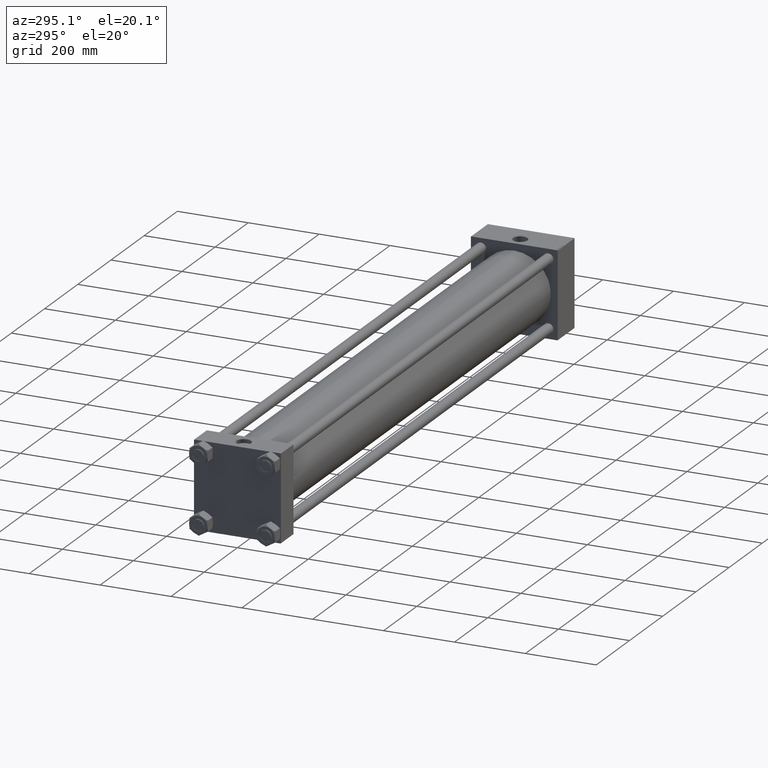
[diagram: clean part render]
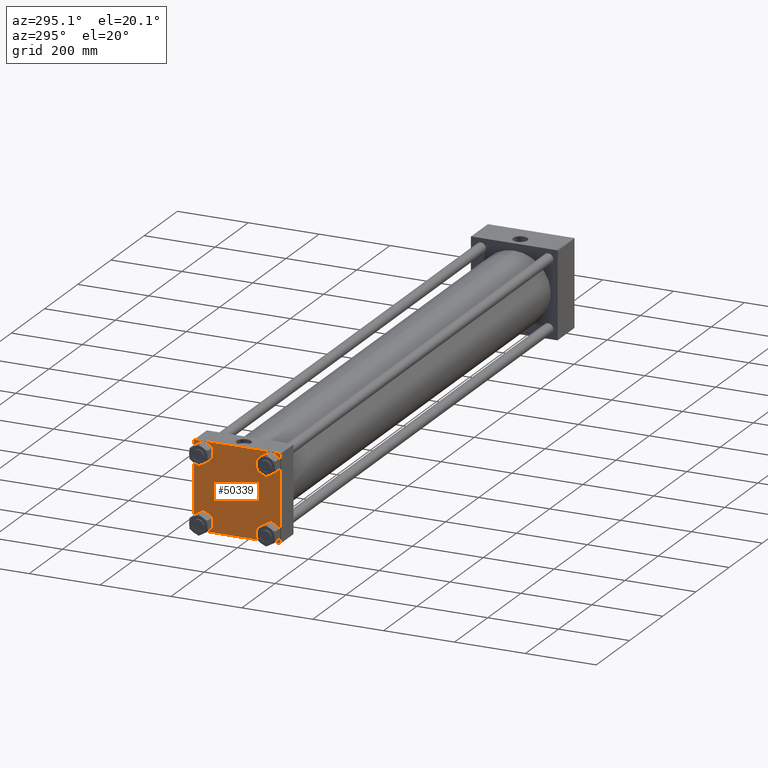
[diagram: same view with one face highlighted and labeled with its STEP entity id]
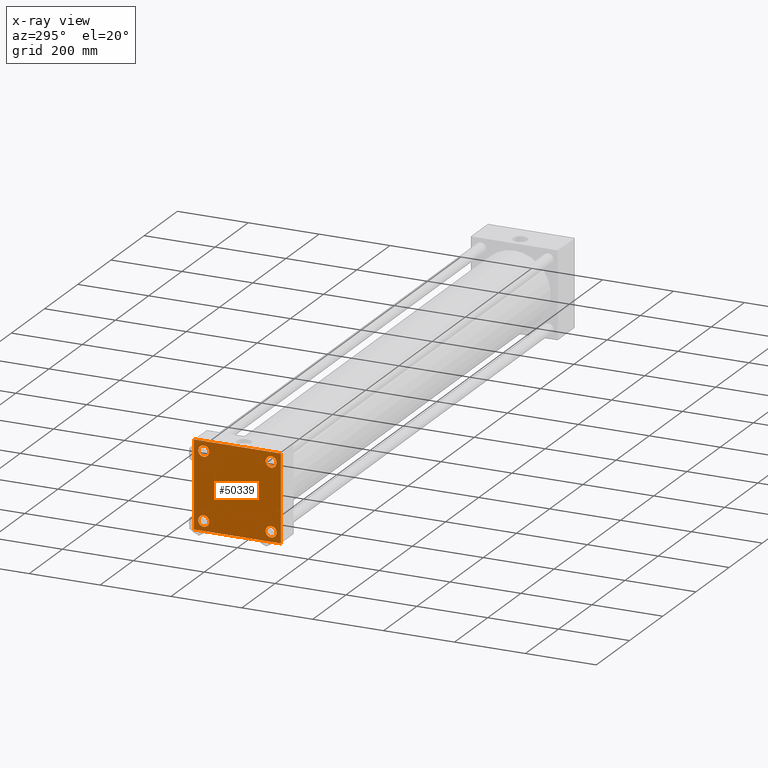
[diagram: x-ray of the same camera — body ghosted, the highlighted face saturated]
A machine part, auxiliary view. The second image highlights one B-rep face of the part: STEP entity #50339.
The next image is the same camera in x-ray: the body ghosted, the highlighted face saturated — about 0% of this face is hidden behind the body in this view.
In plain terms, the highlighted planar face has unit normal (-1, 0, 0).
Its self-contained STEP definition (entity closure, byte-faithful):
#1014 = EDGE_CURVE ( 'NONE', #15321, #15015, #48684, .T. ) ;
#1027 = VERTEX_POINT ( 'NONE', #6965 ) ;
#1259 = EDGE_CURVE ( 'NONE', #8571, #20245, #26407, .T. ) ;
#1309 = DIRECTION ( 'NONE',  ( 0.000000000000000000, 0.000000000000000000, 1.000000000000000000 ) ) ;
#1517 = VERTEX_POINT ( 'NONE', #44569 ) ;
#2001 = VECTOR ( 'NONE', #22803, 1000.000000000000114 ) ;
#2686 = DIRECTION ( 'NONE',  ( 0.000000000000000000, -1.000000000000000000, -1.132880637372608740E-16 ) ) ;
#2701 = ORIENTED_EDGE ( 'NONE', *, *, #32689, .T. ) ;
#2736 = EDGE_CURVE ( 'NONE', #1027, #14765, #22692, .T. ) ;
#2826 = FACE_BOUND ( 'NONE', #42730, .T. ) ;
#3235 = EDGE_CURVE ( 'NONE', #3657, #1517, #25833, .T. ) ;
#3438 = LINE ( 'NONE', #38604, #21310 ) ;
#3657 = VERTEX_POINT ( 'NONE', #10583 ) ;
#4120 = DIRECTION ( 'NONE',  ( 1.000000000000000000, -0.000000000000000000, -0.000000000000000000 ) ) ;
#4212 = ORIENTED_EDGE ( 'NONE', *, *, #17171, .T. ) ;
#4309 = AXIS2_PLACEMENT_3D ( 'NONE', #40851, #5700, #24927 ) ;
#4588 = EDGE_CURVE ( 'NONE', #35973, #5189, #19294, .T. ) ;
#5189 = VERTEX_POINT ( 'NONE', #28053 ) ;
#5700 = DIRECTION ( 'NONE',  ( 1.000000000000000000, -0.000000000000000000, -0.000000000000000000 ) ) ;
#5999 = ORIENTED_EDGE ( 'NONE', *, *, #41570, .T. ) ;
#6428 = FACE_BOUND ( 'NONE', #15592, .T. ) ;
#6965 = CARTESIAN_POINT ( 'NONE',  ( 0.000000000000000000, 122.5000000000000568, 122.0000000000000853 ) ) ;
#6974 = AXIS2_PLACEMENT_3D ( 'NONE', #32346, #25406, #1309 ) ;
#7679 = ORIENTED_EDGE ( 'NONE', *, *, #1014, .T. ) ;
#7736 = ORIENTED_EDGE ( 'NONE', *, *, #10115, .T. ) ;
#8117 = CARTESIAN_POINT ( 'NONE',  ( 0.000000000000000000, 95.09999999999999432, -79.60000000000000853 ) ) ;
#8434 = ORIENTED_EDGE ( 'NONE', *, *, #4588, .T. ) ;
#8562 = CARTESIAN_POINT ( 'NONE',  ( 0.000000000000000000, -122.5000000000000000, -122.0000000000000568 ) ) ;
#8571 = VERTEX_POINT ( 'NONE', #38335 ) ;
#8808 = ORIENTED_EDGE ( 'NONE', *, *, #23263, .T. ) ;
#9627 = CARTESIAN_POINT ( 'NONE',  ( 0.000000000000000000, -95.09999999999996589, -95.10000000000005116 ) ) ;
#9823 = AXIS2_PLACEMENT_3D ( 'NONE', #49769, #11022, #14631 ) ;
#10041 = LINE ( 'NONE', #13120, #42972 ) ;
#10115 = EDGE_CURVE ( 'NONE', #27361, #8571, #16803, .T. ) ;
#10322 = AXIS2_PLACEMENT_3D ( 'NONE', #13099, #21816, #32864 ) ;
#10583 = CARTESIAN_POINT ( 'NONE',  ( 0.000000000000000000, -95.09999999999996589, 110.6000000000000654 ) ) ;
#10752 = ORIENTED_EDGE ( 'NONE', *, *, #46526, .T. ) ;
#10940 = CARTESIAN_POINT ( 'NONE',  ( 0.000000000000000000, 122.0000000000000568, 122.5000000000000284 ) ) ;
#11022 = DIRECTION ( 'NONE',  ( -1.000000000000000000, 0.000000000000000000, 0.000000000000000000 ) ) ;
#11666 = EDGE_LOOP ( 'NONE', ( #34526, #8808, #7736, #34912, #49204, #21426, #43212, #2701 ) ) ;
#13099 = CARTESIAN_POINT ( 'NONE',  ( 0.000000000000000000, 95.09999999999999432, -95.10000000000002274 ) ) ;
#13120 = CARTESIAN_POINT ( 'NONE',  ( 0.000000000000000000, -122.2499999999932641, 122.2500000000068212 ) ) ;
#13972 = LINE ( 'NONE', #49614, #45060 ) ;
#14372 = FACE_BOUND ( 'NONE', #49728, .T. ) ;
#14631 = DIRECTION ( 'NONE',  ( 0.000000000000000000, 0.000000000000000000, 1.000000000000000000 ) ) ;
#14705 = AXIS2_PLACEMENT_3D ( 'NONE', #9627, #25268, #40936 ) ;
#14765 = VERTEX_POINT ( 'NONE', #27646 ) ;
#14828 = ORIENTED_EDGE ( 'NONE', *, *, #46248, .T. ) ;
#14832 = CARTESIAN_POINT ( 'NONE',  ( 0.000000000000000000, 95.09999999999999432, -95.10000000000002274 ) ) ;
#15015 = VERTEX_POINT ( 'NONE', #47524 ) ;
#15228 = ORIENTED_EDGE ( 'NONE', *, *, #3235, .T. ) ;
#15317 = VECTOR ( 'NONE', #19999, 1000.000000000000000 ) ;
#15321 = VERTEX_POINT ( 'NONE', #37786 ) ;
#15457 = CIRCLE ( 'NONE', #19507, 15.50000000000001421 ) ;
#15592 = EDGE_LOOP ( 'NONE', ( #8434, #5999 ) ) ;
#15994 = DIRECTION ( 'NONE',  ( -0.000000000000000000, -0.7071067811865474617, -0.7071067811865474617 ) ) ;
#16087 = CIRCLE ( 'NONE', #35760, 15.50000000000001421 ) ;
#16803 = LINE ( 'NONE', #21152, #19364 ) ;
#17171 = EDGE_CURVE ( 'NONE', #15015, #15321, #23702, .T. ) ;
#18496 = DIRECTION ( 'NONE',  ( 0.000000000000000000, 0.000000000000000000, 1.000000000000000000 ) ) ;
#19052 = EDGE_CURVE ( 'NONE', #37017, #34143, #13972, .T. ) ;
#19294 = CIRCLE ( 'NONE', #10322, 15.50000000000001421 ) ;
#19364 = VECTOR ( 'NONE', #36562, 1000.000000000000000 ) ;
#19507 = AXIS2_PLACEMENT_3D ( 'NONE', #37772, #22355, #18496 ) ;
#19759 = DIRECTION ( 'NONE',  ( 0.000000000000000000, 0.000000000000000000, 1.000000000000000000 ) ) ;
#19867 = CIRCLE ( 'NONE', #4309, 15.50000000000001421 ) ;
#19999 = DIRECTION ( 'NONE',  ( 0.000000000000000000, -1.132880637372608493E-16, -1.000000000000000000 ) ) ;
#20245 = VERTEX_POINT ( 'NONE', #8562 ) ;
#21152 = CARTESIAN_POINT ( 'NONE',  ( 0.000000000000000000, 122.5000000000000568, -122.5000000000000000 ) ) ;
#21310 = VECTOR ( 'NONE', #15994, 1000.000000000000114 ) ;
#21426 = ORIENTED_EDGE ( 'NONE', *, *, #33349, .T. ) ;
#21758 = DIRECTION ( 'NONE',  ( 0.000000000000000000, 0.7071067811865868746, -0.7071067811865081598 ) ) ;
#21816 = DIRECTION ( 'NONE',  ( 1.000000000000000000, -0.000000000000000000, -0.000000000000000000 ) ) ;
#22082 = FACE_OUTER_BOUND ( 'NONE', #11666, .T. ) ;
#22355 = DIRECTION ( 'NONE',  ( 1.000000000000000000, -0.000000000000000000, -0.000000000000000000 ) ) ;
#22692 = LINE ( 'NONE', #26298, #33984 ) ;
#22774 = DIRECTION ( 'NONE',  ( 0.000000000000000000, 0.000000000000000000, 1.000000000000000000 ) ) ;
#22803 = DIRECTION ( 'NONE',  ( 0.000000000000000000, -0.7071067811865474617, 0.7071067811865474617 ) ) ;
#23263 = EDGE_CURVE ( 'NONE', #14765, #27361, #3438, .T. ) ;
#23702 = CIRCLE ( 'NONE', #14705, 15.50000000000001421 ) ;
#24457 = AXIS2_PLACEMENT_3D ( 'NONE', #34230, #26263, #41924 ) ;
#24811 = CARTESIAN_POINT ( 'NONE',  ( 0.000000000000000000, -122.4999999999999716, 122.0000000000001137 ) ) ;
#24927 = DIRECTION ( 'NONE',  ( 0.000000000000000000, 0.000000000000000000, 1.000000000000000000 ) ) ;
#25268 = DIRECTION ( 'NONE',  ( 1.000000000000000000, -0.000000000000000000, -0.000000000000000000 ) ) ;
#25406 = DIRECTION ( 'NONE',  ( 1.000000000000000000, -0.000000000000000000, -0.000000000000000000 ) ) ;
#25660 = CARTESIAN_POINT ( 'NONE',  ( 0.000000000000000000, 122.0000000000000568, -122.5000000000000000 ) ) ;
#25833 = CIRCLE ( 'NONE', #6974, 15.50000000000001421 ) ;
#26044 = DIRECTION ( 'NONE',  ( 0.000000000000000000, 0.000000000000000000, -1.000000000000000000 ) ) ;
#26083 = CIRCLE ( 'NONE', #24457, 15.50000000000001421 ) ;
#26120 = VERTEX_POINT ( 'NONE', #47286 ) ;
#26263 = DIRECTION ( 'NONE',  ( 1.000000000000000000, -0.000000000000000000, -0.000000000000000000 ) ) ;
#26298 = CARTESIAN_POINT ( 'NONE',  ( 0.000000000000000000, 122.5000000000000568, 122.5000000000000284 ) ) ;
#26407 = LINE ( 'NONE', #38221, #2001 ) ;
#27361 = VERTEX_POINT ( 'NONE', #25660 ) ;
#27646 = CARTESIAN_POINT ( 'NONE',  ( 0.000000000000000000, 122.5000000000000568, -121.9999999999999432 ) ) ;
#28053 = CARTESIAN_POINT ( 'NONE',  ( 0.000000000000000000, 95.09999999999999432, -110.6000000000000369 ) ) ;
#28216 = LINE ( 'NONE', #35678, #15317 ) ;
#29699 = EDGE_CURVE ( 'NONE', #26120, #34842, #19867, .T. ) ;
#29829 = VECTOR ( 'NONE', #21758, 1000.000000000000000 ) ;
#30026 = PLANE ( 'NONE',  #9823 ) ;
#32346 = CARTESIAN_POINT ( 'NONE',  ( 0.000000000000000000, -95.09999999999996589, 95.10000000000005116 ) ) ;
#32689 = EDGE_CURVE ( 'NONE', #37017, #1027, #45623, .T. ) ;
#32864 = DIRECTION ( 'NONE',  ( 0.000000000000000000, 0.000000000000000000, 1.000000000000000000 ) ) ;
#32886 = DIRECTION ( 'NONE',  ( -0.000000000000000000, 0.7071067811865867636, 0.7071067811865082708 ) ) ;
#33041 = CARTESIAN_POINT ( 'NONE',  ( 0.000000000000000000, 95.09999999999999432, 79.60000000000000853 ) ) ;
#33349 = EDGE_CURVE ( 'NONE', #42789, #34143, #10041, .T. ) ;
#33984 = VECTOR ( 'NONE', #26044, 1000.000000000000000 ) ;
#34143 = VERTEX_POINT ( 'NONE', #42678 ) ;
#34230 = CARTESIAN_POINT ( 'NONE',  ( 0.000000000000000000, -95.09999999999996589, 95.10000000000005116 ) ) ;
#34526 = ORIENTED_EDGE ( 'NONE', *, *, #2736, .T. ) ;
#34842 = VERTEX_POINT ( 'NONE', #33041 ) ;
#34912 = ORIENTED_EDGE ( 'NONE', *, *, #1259, .T. ) ;
#35678 = CARTESIAN_POINT ( 'NONE',  ( 0.000000000000000000, -122.4999999999999716, 122.5000000000000000 ) ) ;
#35760 = AXIS2_PLACEMENT_3D ( 'NONE', #14832, #48963, #22774 ) ;
#35973 = VERTEX_POINT ( 'NONE', #8117 ) ;
#36562 = DIRECTION ( 'NONE',  ( 0.000000000000000000, -1.000000000000000000, -2.265761274745216987E-16 ) ) ;
#37017 = VERTEX_POINT ( 'NONE', #10940 ) ;
#37772 = CARTESIAN_POINT ( 'NONE',  ( 0.000000000000000000, 95.09999999999999432, 95.10000000000002274 ) ) ;
#37786 = CARTESIAN_POINT ( 'NONE',  ( 0.000000000000000000, -95.09999999999996589, -79.60000000000003695 ) ) ;
#38221 = CARTESIAN_POINT ( 'NONE',  ( 0.000000000000000000, -122.2500000000000142, -122.2500000000000142 ) ) ;
#38335 = CARTESIAN_POINT ( 'NONE',  ( 0.000000000000000000, -122.0000000000000000, -122.5000000000000568 ) ) ;
#38604 = CARTESIAN_POINT ( 'NONE',  ( 0.000000000000000000, 122.2500000000000142, -122.2500000000000142 ) ) ;
#39282 = CARTESIAN_POINT ( 'NONE',  ( 0.000000000000000000, -95.09999999999996589, -95.10000000000005116 ) ) ;
#40851 = CARTESIAN_POINT ( 'NONE',  ( 0.000000000000000000, 95.09999999999999432, 95.10000000000002274 ) ) ;
#40936 = DIRECTION ( 'NONE',  ( 0.000000000000000000, 0.000000000000000000, 1.000000000000000000 ) ) ;
#41570 = EDGE_CURVE ( 'NONE', #5189, #35973, #16087, .T. ) ;
#41586 = FACE_BOUND ( 'NONE', #47572, .T. ) ;
#41924 = DIRECTION ( 'NONE',  ( 0.000000000000000000, 0.000000000000000000, 1.000000000000000000 ) ) ;
#42273 = CARTESIAN_POINT ( 'NONE',  ( 0.000000000000000000, 122.2499999999932641, 122.2500000000068496 ) ) ;
#42355 = EDGE_CURVE ( 'NONE', #42789, #20245, #28216, .T. ) ;
#42678 = CARTESIAN_POINT ( 'NONE',  ( 0.000000000000000000, -121.9999999999999716, 122.5000000000000000 ) ) ;
#42730 = EDGE_LOOP ( 'NONE', ( #15228, #14828 ) ) ;
#42789 = VERTEX_POINT ( 'NONE', #24811 ) ;
#42972 = VECTOR ( 'NONE', #32886, 1000.000000000000114 ) ;
#43212 = ORIENTED_EDGE ( 'NONE', *, *, #19052, .F. ) ;
#44569 = CARTESIAN_POINT ( 'NONE',  ( 0.000000000000000000, -95.09999999999996589, 79.60000000000003695 ) ) ;
#45060 = VECTOR ( 'NONE', #2686, 1000.000000000000000 ) ;
#45623 = LINE ( 'NONE', #42273, #29829 ) ;
#46234 = AXIS2_PLACEMENT_3D ( 'NONE', #39282, #4120, #19759 ) ;
#46248 = EDGE_CURVE ( 'NONE', #1517, #3657, #26083, .T. ) ;
#46526 = EDGE_CURVE ( 'NONE', #34842, #26120, #15457, .T. ) ;
#47286 = CARTESIAN_POINT ( 'NONE',  ( 0.000000000000000000, 95.09999999999999432, 110.6000000000000369 ) ) ;
#47524 = CARTESIAN_POINT ( 'NONE',  ( 0.000000000000000000, -95.09999999999996589, -110.6000000000000654 ) ) ;
#47572 = EDGE_LOOP ( 'NONE', ( #7679, #4212 ) ) ;
#48684 = CIRCLE ( 'NONE', #46234, 15.50000000000001421 ) ;
#48963 = DIRECTION ( 'NONE',  ( 1.000000000000000000, -0.000000000000000000, -0.000000000000000000 ) ) ;
#49204 = ORIENTED_EDGE ( 'NONE', *, *, #42355, .F. ) ;
#49614 = CARTESIAN_POINT ( 'NONE',  ( 0.000000000000000000, 122.5000000000000568, 122.5000000000000284 ) ) ;
#49728 = EDGE_LOOP ( 'NONE', ( #49836, #10752 ) ) ;
#49769 = CARTESIAN_POINT ( 'NONE',  ( 0.000000000000000000, 0.000000000000000000, 0.000000000000000000 ) ) ;
#49836 = ORIENTED_EDGE ( 'NONE', *, *, #29699, .T. ) ;
#50339 = ADVANCED_FACE ( 'NONE', ( #2826, #41586, #6428, #14372, #22082 ), #30026, .T. ) ;